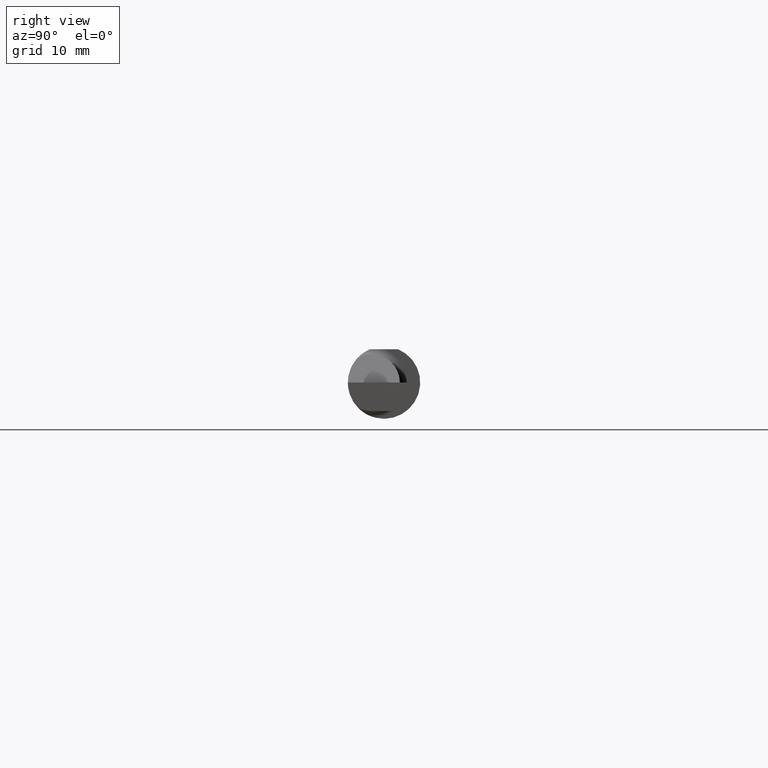
[diagram: clean part render]
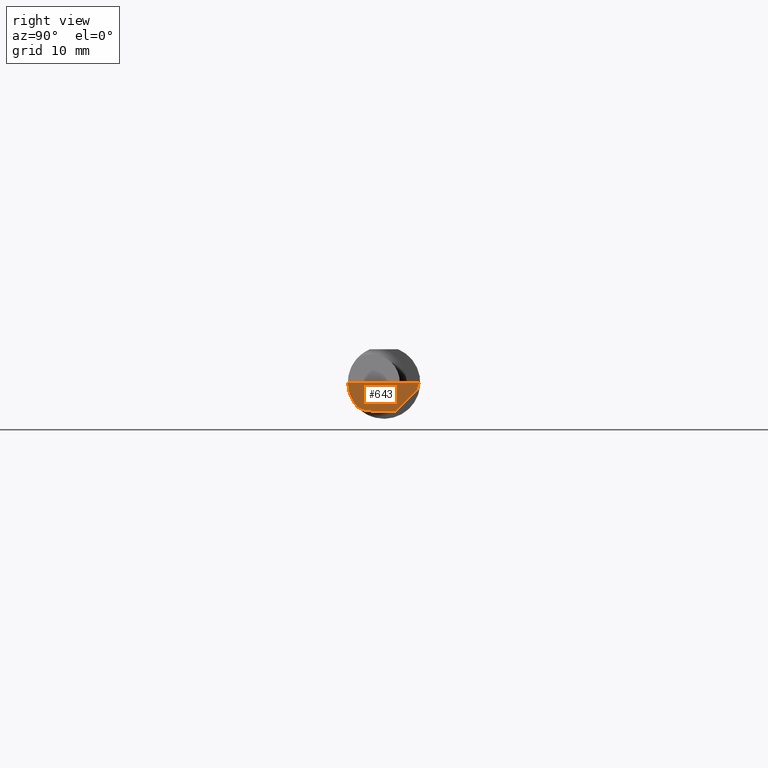
[diagram: same view with one face highlighted and labeled with its STEP entity id]
A machine part, right view. The second image highlights one B-rep face of the part: STEP entity #643.
In plain terms, the highlighted planar face has unit normal (-0.9995, 0.0174, 0.0262).
Its self-contained STEP definition (entity closure, byte-faithful):
#4 = VERTEX_POINT ( 'NONE', #366 ) ;
#18 = CARTESIAN_POINT ( 'NONE',  ( 2.494536841675280670, -0.04385000000000003478, -0.09799999999999998990 ) ) ;
#20 = LINE ( 'NONE', #699, #442 ) ;
#27 = DIRECTION ( 'NONE',  ( 0.02617296143184116158, -0.0004568507411563390110, 0.9996573249755575929 ) ) ;
#28 = LINE ( 'NONE', #203, #404 ) ;
#46 =( BOUNDED_CURVE ( )  B_SPLINE_CURVE ( 3, ( #770, #288, #123, #590 ),
 .UNSPECIFIED., .F., .T. ) 
 B_SPLINE_CURVE_WITH_KNOTS ( ( 4, 4 ),
 ( 0.2190942387645155864, 0.9826237902196512941 ),
 .UNSPECIFIED. ) 
 CURVE ( )  GEOMETRIC_REPRESENTATION_ITEM ( )  RATIONAL_B_SPLINE_CURVE ( ( 1.000000000000000000, 0.9520057322288819623, 0.9520057322288819623, 1.000000000000000000 ) ) 
 REPRESENTATION_ITEM ( '' )  );
#60 = FACE_OUTER_BOUND ( 'NONE', #386, .T. ) ;
#74 = EDGE_CURVE ( 'NONE', #455, #483, #248, .T. ) ;
#75 = VERTEX_POINT ( 'NONE', #140 ) ;
#76 = EDGE_CURVE ( 'NONE', #471, #403, #28, .T. ) ;
#90 = CARTESIAN_POINT ( 'NONE',  ( 2.495688583004118666, -0.1248499869621840785, -5.705736120969982501E-05 ) ) ;
#97 = LINE ( 'NONE', #394, #663 ) ;
#123 = CARTESIAN_POINT ( 'NONE',  ( 2.494835769263151537, -0.1248351010429638308, -0.03262966116142157480 ) ) ;
#140 = CARTESIAN_POINT ( 'NONE',  ( 2.495997960279815686, 0.03988613728104775658, -0.09799999999999996214 ) ) ;
#146 = CARTESIAN_POINT ( 'NONE',  ( 2.493072779947982820, -0.1248043149033065402, -0.09996577117162359916 ) ) ;
#147 = DIRECTION ( 'NONE',  ( -0.03042981077198583101, -0.3254173858243484818, -0.9450807116958995779 ) ) ;
#178 = EDGE_CURVE ( 'NONE', #455, #536, #46, .T. ) ;
#203 = CARTESIAN_POINT ( 'NONE',  ( 2.499907402661638578, 0.1211597610527450630, -0.002875862722116008779 ) ) ;
#231 = CARTESIAN_POINT ( 'NONE',  ( 2.497382703856816377, 0.1221956850741156286, -0.09996573249755572044 ) ) ;
#241 = ORIENTED_EDGE ( 'NONE', *, *, #76, .F. ) ;
#248 =( BOUNDED_CURVE ( )  B_SPLINE_CURVE ( 3, ( #634, #578, #692, #18 ),
 .UNSPECIFIED., .F., .T. ) 
 B_SPLINE_CURVE_WITH_KNOTS ( ( 4, 4 ),
 ( 0.09562308769844128642, 0.5877155292609013149 ),
 .UNSPECIFIED. ) 
 CURVE ( )  GEOMETRIC_REPRESENTATION_ITEM ( )  RATIONAL_B_SPLINE_CURVE ( ( 1.000000000000000000, 0.9799220177372778284, 0.9799220177372778284, 1.000000000000000000 ) ) 
 REPRESENTATION_ITEM ( '' )  );
#251 = ORIENTED_EDGE ( 'NONE', *, *, #584, .F. ) ;
#281 = DIRECTION ( 'NONE',  ( -0.9995051766793262571, 0.01744044634007211117, 0.02617694830739122208 ) ) ;
#288 = CARTESIAN_POINT ( 'NONE',  ( 2.494256244271084721, -0.1126860773865890480, -0.06285177167860772629 ) ) ;
#366 = CARTESIAN_POINT ( 'NONE',  ( 2.495690077103728921, -0.1248499999950965084, 1.733801157256528502E-17 ) ) ;
#386 = EDGE_LOOP ( 'NONE', ( #556, #495, #596, #241, #704, #251, #741 ) ) ;
#387 = DIRECTION ( 'NONE',  ( 0.01744642479411464761, 0.9998477995484629233, -2.135106780035675284E-18 ) ) ;
#394 = CARTESIAN_POINT ( 'NONE',  ( 2.494380489674781209, -0.1999019447116721915, 6.881915332554903690E-19 ) ) ;
#403 = VERTEX_POINT ( 'NONE', #682 ) ;
#404 = VECTOR ( 'NONE', #147, 39.37007874015748854 ) ;
#416 = EDGE_CURVE ( 'NONE', #403, #75, #441, .T. ) ;
#438 = EDGE_CURVE ( 'NONE', #75, #483, #20, .T. ) ;
#441 = LINE ( 'NONE', #686, #493 ) ;
#442 = VECTOR ( 'NONE', #529, 39.37007874015748854 ) ;
#455 = VERTEX_POINT ( 'NONE', #576 ) ;
#468 = EDGE_CURVE ( 'NONE', #4, #471, #97, .T. ) ;
#471 = VERTEX_POINT ( 'NONE', #525 ) ;
#483 = VERTEX_POINT ( 'NONE', #772 ) ;
#493 = VECTOR ( 'NONE', #641, 39.37007874015748854 ) ;
#495 = ORIENTED_EDGE ( 'NONE', *, *, #438, .F. ) ;
#502 = AXIS2_PLACEMENT_3D ( 'NONE', #231, #281, #775 ) ;
#525 = CARTESIAN_POINT ( 'NONE',  ( 2.500000000000000444, 0.1221499999999999808, 1.947508823608312588E-17 ) ) ;
#529 = DIRECTION ( 'NONE',  ( -0.01744642479411464067, -0.9998477995484629233, 2.816882764651548232E-16 ) ) ;
#536 = VERTEX_POINT ( 'NONE', #90 ) ;
#556 = ORIENTED_EDGE ( 'NONE', *, *, #74, .T. ) ;
#576 = CARTESIAN_POINT ( 'NONE',  ( 2.494033449660867152, -0.09015216647662482874, -0.08637192471845768493 ) ) ;
#578 = CARTESIAN_POINT ( 'NONE',  ( 2.494082244196984099, -0.07583965973232818791, -0.09404455760388209795 ) ) ;
#584 = EDGE_CURVE ( 'NONE', #536, #4, #694, .T. ) ;
#590 = CARTESIAN_POINT ( 'NONE',  ( 2.495688583004118666, -0.1248499869621840785, -5.705736120969982501E-05 ) ) ;
#596 = ORIENTED_EDGE ( 'NONE', *, *, #416, .F. ) ;
#597 = PLANE ( 'NONE',  #502 ) ;
#634 = CARTESIAN_POINT ( 'NONE',  ( 2.494033449660867152, -0.09015216647662482874, -0.08637192471845768493 ) ) ;
#641 = DIRECTION ( 'NONE',  ( -0.03084274406794521375, -0.7067703747110382073, -0.7067703747110356538 ) ) ;
#643 = ADVANCED_FACE ( 'NONE', ( #60 ), #597, .F. ) ;
#663 = VECTOR ( 'NONE', #387, 39.37007874015748854 ) ;
#682 = CARTESIAN_POINT ( 'NONE',  ( 2.499227245409318954, 0.1138861372810479888, -0.02400000000000000050 ) ) ;
#686 = CARTESIAN_POINT ( 'NONE',  ( 2.499132853025171297, 0.1117231085775382687, -0.02616302870350971019 ) ) ;
#692 = CARTESIAN_POINT ( 'NONE',  ( 2.494253479596434175, -0.06008937020638530080, -0.09800000000000001765 ) ) ;
#694 = LINE ( 'NONE', #146, #750 ) ;
#699 = CARTESIAN_POINT ( 'NONE',  ( 2.496652745773396020, 0.07741163850316090667, -0.09800000000000001765 ) ) ;
#704 = ORIENTED_EDGE ( 'NONE', *, *, #468, .F. ) ;
#741 = ORIENTED_EDGE ( 'NONE', *, *, #178, .F. ) ;
#750 = VECTOR ( 'NONE', #27, 39.37007874015748854 ) ;
#770 = CARTESIAN_POINT ( 'NONE',  ( 2.494033449660867152, -0.09015216647662482874, -0.08637192471845768493 ) ) ;
#772 = CARTESIAN_POINT ( 'NONE',  ( 2.494536841675280670, -0.04385000000000003478, -0.09799999999999998990 ) ) ;
#775 = DIRECTION ( 'NONE',  ( 0.02618093032612054533, 0.000000000000000000, 0.9996572206948034500 ) ) ;